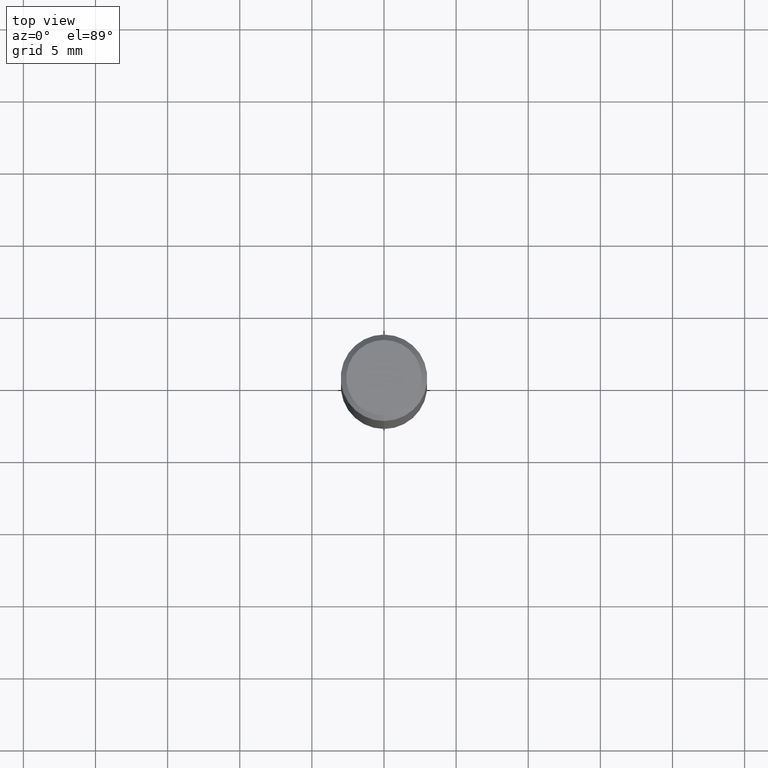
[diagram: clean part render]
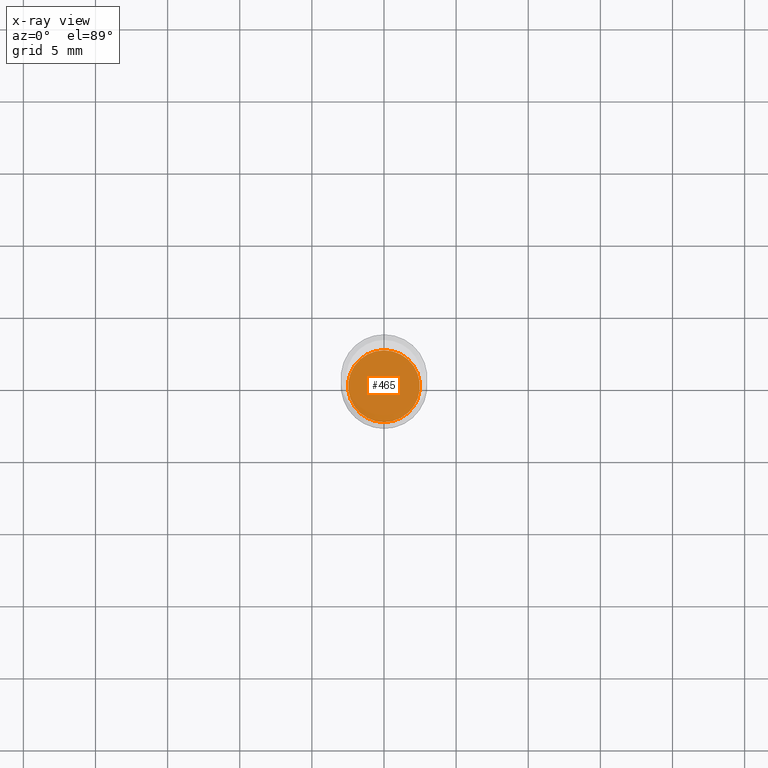
[diagram: x-ray — body ghosted, one internal face saturated and labeled with its STEP entity id]
A machine part, top view, then the same camera in x-ray: the body is ghosted and one INTERNAL B-rep face — a face not visible from any outside direction — is saturated and labeled: STEP entity #465.
In plain terms, the highlighted planar face has unit normal (-0, 0, 1).
Its self-contained STEP definition (entity closure, byte-faithful):
#10 = DIRECTION ( 'NONE',  ( -2.445312692479667883E-29, 3.491704902554816982E-15, 1.000000000000000000 ) ) ;
#15 = AXIS2_PLACEMENT_3D ( 'NONE', #283, #397, #35 ) ;
#35 = DIRECTION ( 'NONE',  ( -6.982962677686265133E-15, -1.000000000000000000, 2.789022964435184631E-15 ) ) ;
#51 = CARTESIAN_POINT ( 'NONE',  ( 3.273295570153283701E-29, -4.673996182559878604E-15, -1.338600000000000012 ) ) ;
#134 = DIRECTION ( 'NONE',  ( -2.445312692479667602E-29, 3.491704902554816982E-15, 1.000000000000000000 ) ) ;
#144 = VERTEX_POINT ( 'NONE', #199 ) ;
#177 = DIRECTION ( 'NONE',  ( -6.982962677686265133E-15, -1.000000000000000000, 2.789022964435184631E-15 ) ) ;
#196 = CIRCLE ( 'NONE', #15, 0.09794999999999999540 ) ;
#199 = CARTESIAN_POINT ( 'NONE',  ( 6.977529665164505961E-16, 0.09794999999999531859, -1.338600000000000234 ) ) ;
#205 = CARTESIAN_POINT ( 'NONE',  ( -6.839811942793369138E-16, -0.09795000000000467222, -1.338599999999999790 ) ) ;
#207 = AXIS2_PLACEMENT_3D ( 'NONE', #51, #134, #333 ) ;
#213 = FACE_OUTER_BOUND ( 'NONE', #374, .T. ) ;
#226 = ORIENTED_EDGE ( 'NONE', *, *, #485, .F. ) ;
#263 = AXIS2_PLACEMENT_3D ( 'NONE', #372, #10, #177 ) ;
#283 = CARTESIAN_POINT ( 'NONE',  ( 3.273295570153283701E-29, -4.673996182559878604E-15, -1.338600000000000012 ) ) ;
#333 = DIRECTION ( 'NONE',  ( -6.982962677686265922E-15, -1.000000000000000000, 3.491704902554816982E-15 ) ) ;
#350 = ORIENTED_EDGE ( 'NONE', *, *, #408, .F. ) ;
#372 = CARTESIAN_POINT ( 'NONE',  ( 3.273295570153283701E-29, -4.673996182559878604E-15, -1.338600000000000012 ) ) ;
#374 = EDGE_LOOP ( 'NONE', ( #226, #350 ) ) ;
#397 = DIRECTION ( 'NONE',  ( -2.445312692479667883E-29, 3.491704902554816982E-15, 1.000000000000000000 ) ) ;
#403 = PLANE ( 'NONE',  #207 ) ;
#408 = EDGE_CURVE ( 'NONE', #144, #413, #196, .T. ) ;
#413 = VERTEX_POINT ( 'NONE', #205 ) ;
#416 = CIRCLE ( 'NONE', #263, 0.09794999999999999540 ) ;
#465 = ADVANCED_FACE ( 'NONE', ( #213 ), #403, .F. ) ;
#485 = EDGE_CURVE ( 'NONE', #413, #144, #416, .T. ) ;